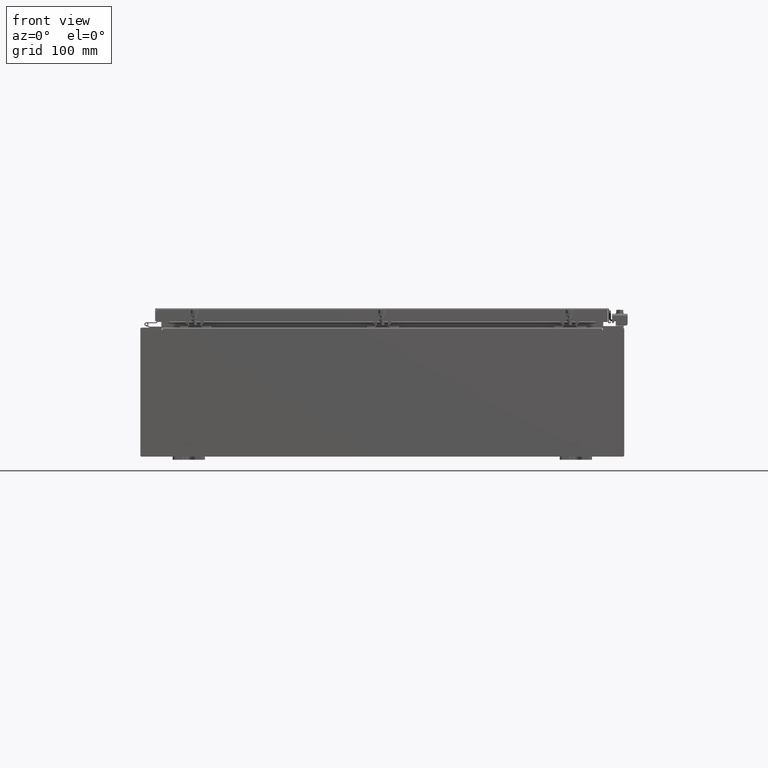
[diagram: clean part render]
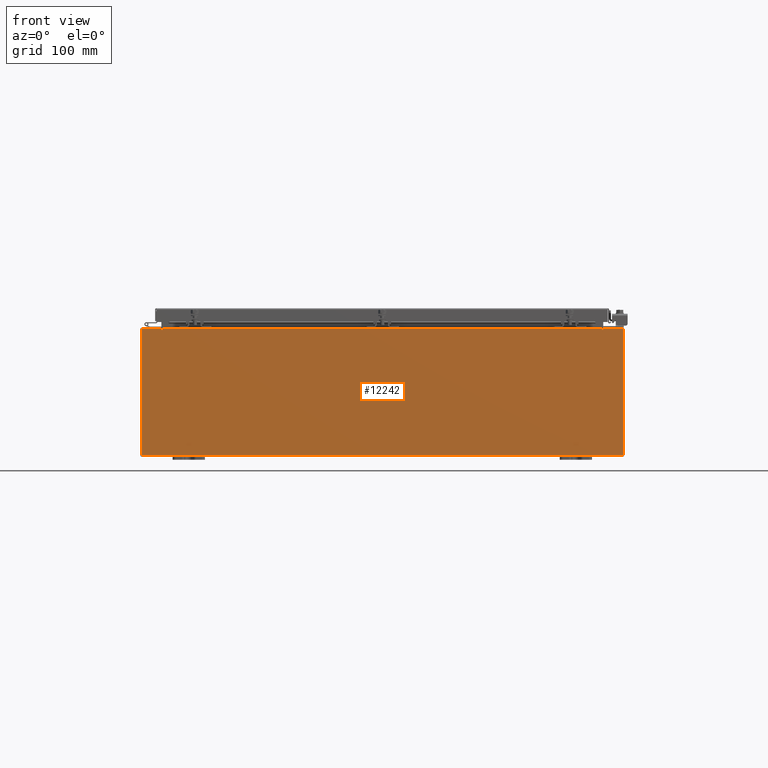
[diagram: same view with one face highlighted and labeled with its STEP entity id]
A machine part, front view. The second image highlights one B-rep face of the part: STEP entity #12242.
In plain terms, the highlighted planar face has unit normal (-0, 1, -0).
Its self-contained STEP definition (entity closure, byte-faithful):
#47 = ORIENTED_EDGE ( 'NONE', *, *, #12645, .F. ) ;
#298 = CARTESIAN_POINT ( 'NONE',  ( -13.63719999999999600, -0.0000000000000000000, 0.0000000000000000000 ) ) ;
#738 = CARTESIAN_POINT ( 'NONE',  ( 13.67455000000000400, 0.0000000000000000000, 3.925299999999999600 ) ) ;
#1057 = ORIENTED_EDGE ( 'NONE', *, *, #15862, .T. ) ;
#1215 = VERTEX_POINT ( 'NONE', #33206 ) ;
#1222 = VECTOR ( 'NONE', #5552, 39.37007874015748100 ) ;
#1780 = ORIENTED_EDGE ( 'NONE', *, *, #29478, .F. ) ;
#2881 = CARTESIAN_POINT ( 'NONE',  ( -14.92529999999999800, 0.0000000000000000000, 3.925299999999999600 ) ) ;
#3786 = ORIENTED_EDGE ( 'NONE', *, *, #31453, .F. ) ;
#4126 = CARTESIAN_POINT ( 'NONE',  ( -14.92529999999999800, 0.0000000000000000000, 3.925299999999999600 ) ) ;
#5026 = DIRECTION ( 'NONE',  ( 0.0000000000000000000, 0.0000000000000000000, 1.000000000000000000 ) ) ;
#5412 = VERTEX_POINT ( 'NONE', #21215 ) ;
#5540 = EDGE_CURVE ( 'NONE', #19074, #35738, #11954, .T. ) ;
#5552 = DIRECTION ( 'NONE',  ( -4.340572780400004900E-014, 0.0000000000000000000, -1.000000000000000000 ) ) ;
#5725 = LINE ( 'NONE', #33613, #36465 ) ;
#5735 = AXIS2_PLACEMENT_3D ( 'NONE', #29489, #11662, #32500 ) ;
#6693 = VECTOR ( 'NONE', #15885, 39.37007874015748100 ) ;
#7173 = VERTEX_POINT ( 'NONE', #29252 ) ;
#7370 = LINE ( 'NONE', #12651, #35313 ) ;
#7532 = VERTEX_POINT ( 'NONE', #22227 ) ;
#7851 = PLANE ( 'NONE',  #27517 ) ;
#8540 = CARTESIAN_POINT ( 'NONE',  ( 13.67454999999983300, -0.0000000000000000000, -5.935537951421816200E-013 ) ) ;
#9092 = ORIENTED_EDGE ( 'NONE', *, *, #33061, .T. ) ;
#10196 = VERTEX_POINT ( 'NONE', #23866 ) ;
#10392 = CARTESIAN_POINT ( 'NONE',  ( -14.92529999999999800, 0.0000000000000000000, -3.925299999999999600 ) ) ;
#10837 = DIRECTION ( 'NONE',  ( 0.0000000000000000000, -1.000000000000000000, 0.0000000000000000000 ) ) ;
#11662 = DIRECTION ( 'NONE',  ( -0.0000000000000000000, 1.000000000000000000, -0.0000000000000000000 ) ) ;
#11722 = CIRCLE ( 'NONE', #22422, 0.01867499999999949400 ) ;
#11847 = DIRECTION ( 'NONE',  ( -0.0000000000000000000, -0.0000000000000000000, 1.000000000000000000 ) ) ;
#11954 = LINE ( 'NONE', #4126, #27795 ) ;
#12242 = ADVANCED_FACE ( 'NONE', ( #18592 ), #7851, .F. ) ;
#12645 = EDGE_CURVE ( 'NONE', #36179, #7173, #7370, .T. ) ;
#12651 = CARTESIAN_POINT ( 'NONE',  ( 13.63720000000000400, 0.0000000000000000000, 0.0000000000000000000 ) ) ;
#12980 = EDGE_CURVE ( 'NONE', #34218, #14122, #25991, .T. ) ;
#14122 = VERTEX_POINT ( 'NONE', #14371 ) ;
#14371 = CARTESIAN_POINT ( 'NONE',  ( -14.92529999999999800, 0.0000000000000000000, 3.925299999999999600 ) ) ;
#14616 = CARTESIAN_POINT ( 'NONE',  ( -13.63719999999999600, 1.024442997624098700E-016, 3.912299999999999700 ) ) ;
#14727 = VECTOR ( 'NONE', #5026, 39.37007874015748100 ) ;
#15862 = EDGE_CURVE ( 'NONE', #14122, #10196, #32346, .T. ) ;
#15885 = DIRECTION ( 'NONE',  ( -1.000000000000000000, -0.0000000000000000000, -0.0000000000000000000 ) ) ;
#16282 = CARTESIAN_POINT ( 'NONE',  ( 13.65587500000000200, 0.0000000000000000000, 3.874949999999999700 ) ) ;
#16525 = VECTOR ( 'NONE', #38202, 39.37007874015748100 ) ;
#16596 = VERTEX_POINT ( 'NONE', #32956 ) ;
#17709 = VECTOR ( 'NONE', #35979, 39.37007874015748100 ) ;
#17874 = VECTOR ( 'NONE', #22009, 39.37007874015748100 ) ;
#18592 = FACE_OUTER_BOUND ( 'NONE', #29083, .T. ) ;
#18651 = DIRECTION ( 'NONE',  ( 0.0000000000000000000, 0.0000000000000000000, 1.000000000000000000 ) ) ;
#18807 = LINE ( 'NONE', #36948, #17874 ) ;
#18988 = ORIENTED_EDGE ( 'NONE', *, *, #31126, .F. ) ;
#19074 = VERTEX_POINT ( 'NONE', #738 ) ;
#19264 = DIRECTION ( 'NONE',  ( 0.0000000000000000000, 0.0000000000000000000, -1.000000000000000000 ) ) ;
#19987 = ORIENTED_EDGE ( 'NONE', *, *, #33009, .T. ) ;
#21215 = CARTESIAN_POINT ( 'NONE',  ( -13.63719999999999600, -0.0000000000000000000, 3.874949999999999700 ) ) ;
#21766 = DIRECTION ( 'NONE',  ( 1.000000000000000000, 0.0000000000000000000, 0.0000000000000000000 ) ) ;
#22009 = DIRECTION ( 'NONE',  ( 0.0000000000000000000, 0.0000000000000000000, -1.000000000000000000 ) ) ;
#22227 = CARTESIAN_POINT ( 'NONE',  ( 13.67455000000000200, 0.0000000000000000000, 3.874949999999999700 ) ) ;
#22330 = ORIENTED_EDGE ( 'NONE', *, *, #36880, .F. ) ;
#22422 = AXIS2_PLACEMENT_3D ( 'NONE', #16282, #37078, #19264 ) ;
#22664 = LINE ( 'NONE', #34709, #14727 ) ;
#22813 = CIRCLE ( 'NONE', #5735, 0.01867499999999949400 ) ;
#23402 = CARTESIAN_POINT ( 'NONE',  ( -14.92529999999999800, 0.0000000000000000000, 3.925299999999999600 ) ) ;
#23866 = CARTESIAN_POINT ( 'NONE',  ( -13.67454999999999500, 0.0000000000000000000, 3.925299999999999600 ) ) ;
#25991 = LINE ( 'NONE', #2881, #32025 ) ;
#26965 = CARTESIAN_POINT ( 'NONE',  ( 14.92530000000000200, 0.0000000000000000000, 3.925299999999999600 ) ) ;
#27351 = EDGE_CURVE ( 'NONE', #37229, #7173, #5725, .T. ) ;
#27517 = AXIS2_PLACEMENT_3D ( 'NONE', #28679, #10837, #31693 ) ;
#27795 = VECTOR ( 'NONE', #27957, 39.37007874015748100 ) ;
#27957 = DIRECTION ( 'NONE',  ( 1.000000000000000000, 0.0000000000000000000, 0.0000000000000000000 ) ) ;
#28679 = CARTESIAN_POINT ( 'NONE',  ( 0.0000000000000000000, 0.0000000000000000000, 0.0000000000000000000 ) ) ;
#29018 = ORIENTED_EDGE ( 'NONE', *, *, #5540, .T. ) ;
#29083 = EDGE_LOOP ( 'NONE', ( #3786, #1780, #22330, #29818, #47, #38157, #18988, #29018, #9092, #19987, #38426, #1057 ) ) ;
#29252 = CARTESIAN_POINT ( 'NONE',  ( 13.63720000000000400, 0.0000000000000000000, 3.912299999999999700 ) ) ;
#29478 = EDGE_CURVE ( 'NONE', #5412, #16596, #22813, .T. ) ;
#29489 = CARTESIAN_POINT ( 'NONE',  ( -13.65587499999999600, 0.0000000000000000000, 3.874949999999999700 ) ) ;
#29515 = LINE ( 'NONE', #36688, #6693 ) ;
#29818 = ORIENTED_EDGE ( 'NONE', *, *, #27351, .T. ) ;
#31126 = EDGE_CURVE ( 'NONE', #19074, #7532, #32911, .T. ) ;
#31453 = EDGE_CURVE ( 'NONE', #16596, #10196, #22664, .T. ) ;
#31693 = DIRECTION ( 'NONE',  ( 0.0000000000000000000, -0.0000000000000000000, -1.000000000000000000 ) ) ;
#32025 = VECTOR ( 'NONE', #11847, 39.37007874015748100 ) ;
#32346 = LINE ( 'NONE', #23402, #16525 ) ;
#32500 = DIRECTION ( 'NONE',  ( 0.0000000000000000000, 0.0000000000000000000, -1.000000000000000000 ) ) ;
#32911 = LINE ( 'NONE', #8540, #1222 ) ;
#32956 = CARTESIAN_POINT ( 'NONE',  ( -13.67454999999999500, 0.0000000000000000000, 3.874949999999999700 ) ) ;
#33009 = EDGE_CURVE ( 'NONE', #1215, #34218, #29515, .T. ) ;
#33061 = EDGE_CURVE ( 'NONE', #35738, #1215, #18807, .T. ) ;
#33206 = CARTESIAN_POINT ( 'NONE',  ( 14.92530000000000200, 0.0000000000000000000, -3.925299999999999600 ) ) ;
#33553 = LINE ( 'NONE', #298, #17709 ) ;
#33613 = CARTESIAN_POINT ( 'NONE',  ( -13.63719999999999800, 1.024442997624098700E-016, 3.912299999999999700 ) ) ;
#34218 = VERTEX_POINT ( 'NONE', #10392 ) ;
#34709 = CARTESIAN_POINT ( 'NONE',  ( -13.67454999999999500, -0.0000000000000000000, 0.0000000000000000000 ) ) ;
#35313 = VECTOR ( 'NONE', #18651, 39.37007874015748100 ) ;
#35386 = CARTESIAN_POINT ( 'NONE',  ( 13.63720000000000400, 0.0000000000000000000, 3.874949999999999700 ) ) ;
#35738 = VERTEX_POINT ( 'NONE', #26965 ) ;
#35881 = EDGE_CURVE ( 'NONE', #7532, #36179, #11722, .T. ) ;
#35979 = DIRECTION ( 'NONE',  ( 0.0000000000000000000, 0.0000000000000000000, -1.000000000000000000 ) ) ;
#36179 = VERTEX_POINT ( 'NONE', #35386 ) ;
#36465 = VECTOR ( 'NONE', #21766, 39.37007874015748100 ) ;
#36688 = CARTESIAN_POINT ( 'NONE',  ( -14.92529999999999800, 0.0000000000000000000, -3.925299999999999600 ) ) ;
#36880 = EDGE_CURVE ( 'NONE', #37229, #5412, #33553, .T. ) ;
#36948 = CARTESIAN_POINT ( 'NONE',  ( 14.92530000000000200, 0.0000000000000000000, 3.925299999999999600 ) ) ;
#37078 = DIRECTION ( 'NONE',  ( -0.0000000000000000000, 1.000000000000000000, -0.0000000000000000000 ) ) ;
#37229 = VERTEX_POINT ( 'NONE', #14616 ) ;
#38157 = ORIENTED_EDGE ( 'NONE', *, *, #35881, .F. ) ;
#38202 = DIRECTION ( 'NONE',  ( 1.000000000000000000, 0.0000000000000000000, 0.0000000000000000000 ) ) ;
#38426 = ORIENTED_EDGE ( 'NONE', *, *, #12980, .T. ) ;